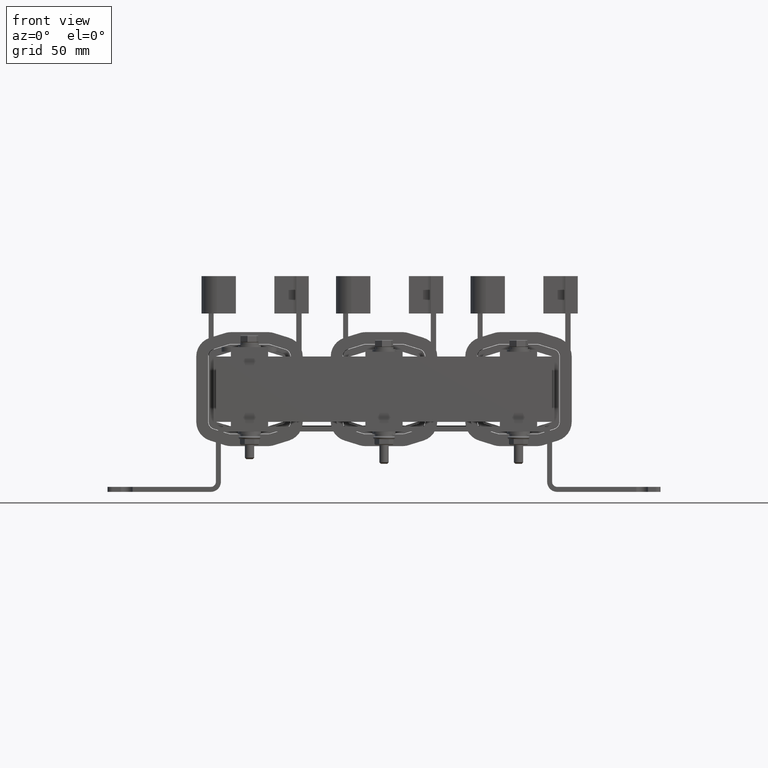
[diagram: clean part render]
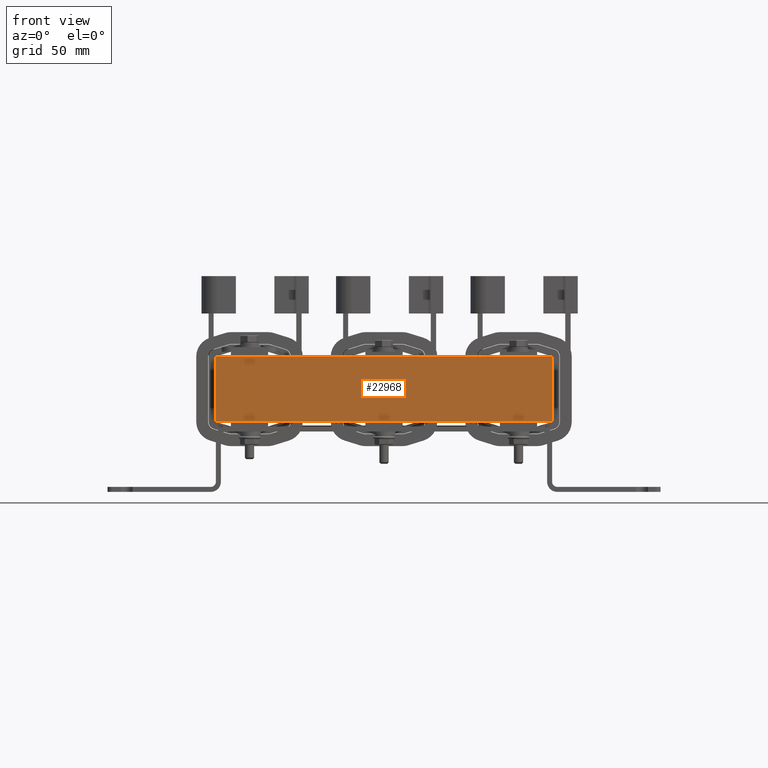
[diagram: same view with one face highlighted and labeled with its STEP entity id]
A machine part, front view. The second image highlights one B-rep face of the part: STEP entity #22968.
In plain terms, the highlighted planar face has unit normal (0, -1, 0).
Its self-contained STEP definition (entity closure, byte-faithful):
#924=PLANE('',#24666);
#1652=FACE_OUTER_BOUND('',#2935,.T.);
#2935=EDGE_LOOP('',(#15648,#15649,#15650,#15651));
#4326=LINE('',#32986,#6705);
#4331=LINE('',#32995,#6710);
#4335=LINE('',#33003,#6714);
#4336=LINE('',#33005,#6715);
#6705=VECTOR('',#26656,0.393700787401575);
#6710=VECTOR('',#26663,0.393700787401575);
#6714=VECTOR('',#26671,0.393700787401575);
#6715=VECTOR('',#26674,0.393700787401575);
#9852=VERTEX_POINT('',#32982);
#9854=VERTEX_POINT('',#32985);
#9856=VERTEX_POINT('',#32991);
#9859=VERTEX_POINT('',#33001);
#12154=EDGE_CURVE('',#9854,#9852,#4326,.T.);
#12159=EDGE_CURVE('',#9856,#9854,#4331,.T.);
#12163=EDGE_CURVE('',#9852,#9859,#4335,.T.);
#12164=EDGE_CURVE('',#9859,#9856,#4336,.T.);
#15648=ORIENTED_EDGE('',*,*,#12164,.T.);
#15649=ORIENTED_EDGE('',*,*,#12159,.T.);
#15650=ORIENTED_EDGE('',*,*,#12154,.T.);
#15651=ORIENTED_EDGE('',*,*,#12163,.T.);
#22968=ADVANCED_FACE('',(#1652),#924,.T.);
#24666=AXIS2_PLACEMENT_3D('',#33004,#26672,#26673);
#26656=DIRECTION('',(1.,1.35985322351288E-16,0.));
#26663=DIRECTION('',(0.,0.,-1.));
#26671=DIRECTION('',(0.,0.,1.));
#26672=DIRECTION('center_axis',(1.35985322351288E-16,-1.,0.));
#26673=DIRECTION('ref_axis',(0.,0.,-1.));
#26674=DIRECTION('',(-1.,-1.35985322351288E-16,0.));
#32982=CARTESIAN_POINT('',(7.71526407111042,-0.958644886780046,-0.875));
#32985=CARTESIAN_POINT('',(-1.28473592888958,-0.958644886780047,-0.875));
#32986=CARTESIAN_POINT('',(7.71526407111042,-0.958644886780046,-0.875));
#32991=CARTESIAN_POINT('',(-1.28473592888958,-0.958644886780047,0.875));
#32995=CARTESIAN_POINT('',(-1.28473592888958,-0.958644886780047,0.));
#33001=CARTESIAN_POINT('',(7.71526407111042,-0.958644886780046,0.875));
#33003=CARTESIAN_POINT('',(7.71526407111042,-0.958644886780046,0.));
#33004=CARTESIAN_POINT('Origin',(7.71526407111042,-0.958644886780046,0.));
#33005=CARTESIAN_POINT('',(7.71526407111042,-0.958644886780046,0.875));